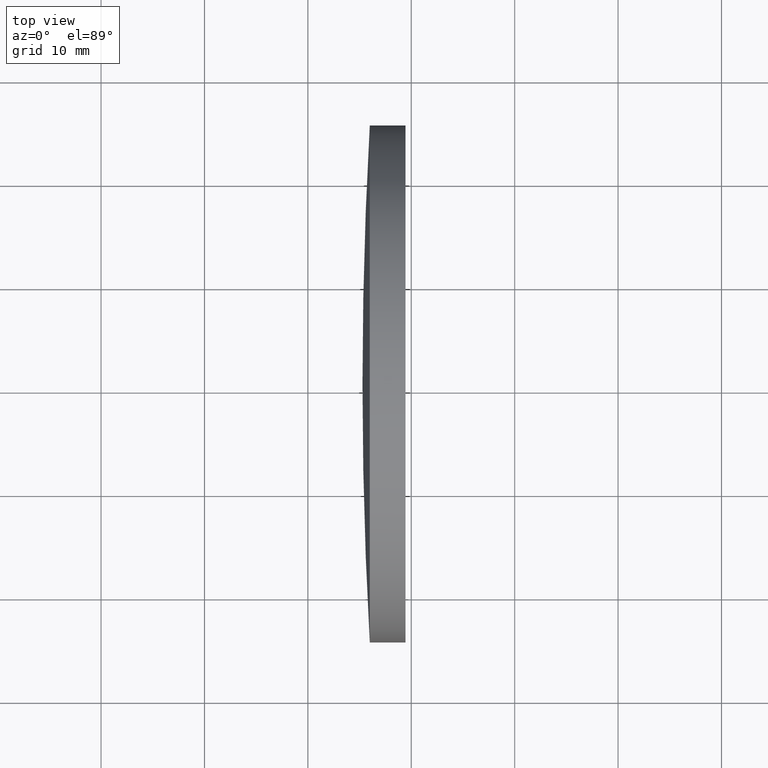
[diagram: clean part render]
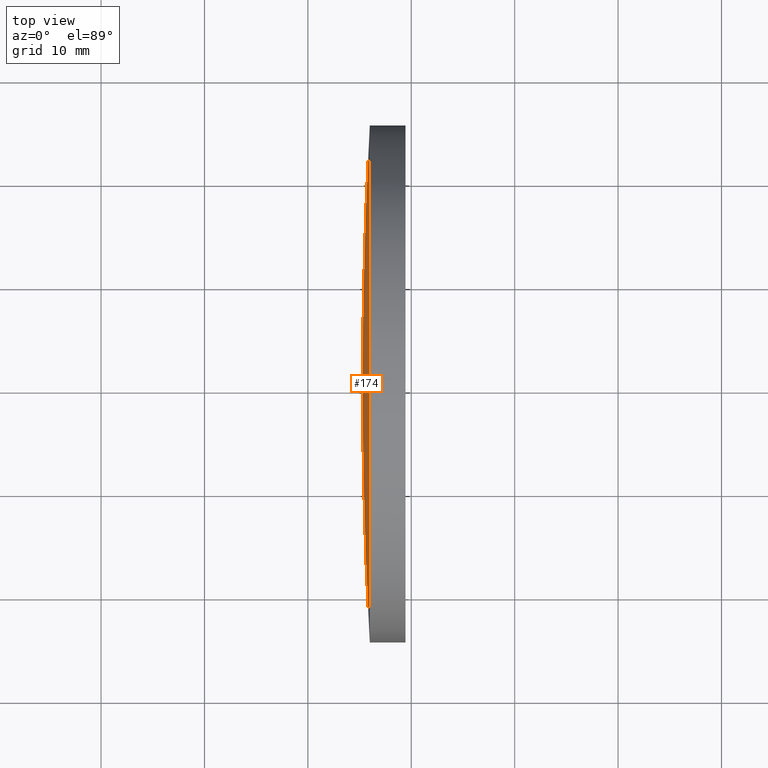
[diagram: same view with one face highlighted and labeled with its STEP entity id]
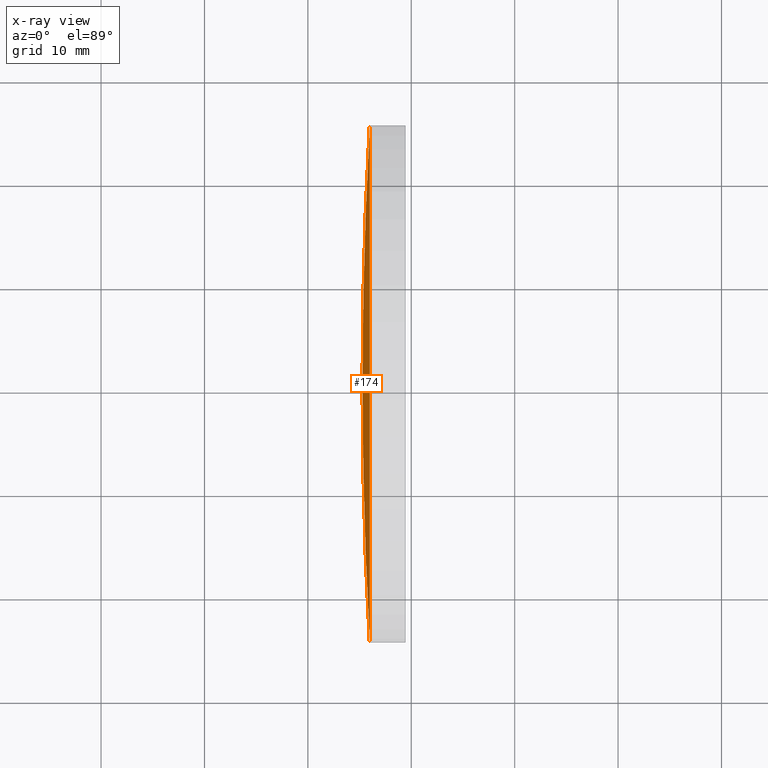
[diagram: x-ray of the same camera — body ghosted, the highlighted face saturated]
A machine part, top view. The second image highlights one B-rep face of the part: STEP entity #174.
The next image is the same camera in x-ray: the body ghosted, the highlighted face saturated — about 0% of this face is hidden behind the body in this view.
In plain terms, the highlighted spherical surface has radius 443.5 mm.
Its self-contained STEP definition (entity closure, byte-faithful):
#5 = AXIS2_PLACEMENT_3D ( 'NONE', #11, #85, #116 ) ;
#11 = CARTESIAN_POINT ( 'NONE',  ( 688.7821311214902400, 130.4336809418806500, 0.0000000000000000000 ) ) ;
#14 = CARTESIAN_POINT ( 'NONE',  ( 688.7821311214902400, 130.4336809418806500, 0.0000000000000000000 ) ) ;
#16 = FACE_OUTER_BOUND ( 'NONE', #111, .T. ) ;
#23 = EDGE_CURVE ( 'NONE', #80, #93, #188, .T. ) ;
#32 = CARTESIAN_POINT ( 'NONE',  ( 688.7821311214902400, 130.4336809418806500, 0.0000000000000000000 ) ) ;
#53 = DIRECTION ( 'NONE',  ( -1.000000000000000000, -6.937607244762875000E-016, -0.0000000000000000000 ) ) ;
#57 = CARTESIAN_POINT ( 'NONE',  ( 245.2821311214903200, 130.4336809418803700, 0.0000000000000000000 ) ) ;
#62 = CIRCLE ( 'NONE', #83, 24.99999999999992500 ) ;
#66 = ORIENTED_EDGE ( 'NONE', *, *, #109, .T. ) ;
#67 = AXIS2_PLACEMENT_3D ( 'NONE', #14, #118, #142 ) ;
#68 = CARTESIAN_POINT ( 'NONE',  ( 245.9873140786527900, 130.4336809418806500, 0.0000000000000000000 ) ) ;
#69 = ORIENTED_EDGE ( 'NONE', *, *, #23, .F. ) ;
#72 = DIRECTION ( 'NONE',  ( -8.496118506040342700E-032, 1.224646799147353200E-016, -1.000000000000000000 ) ) ;
#80 = VERTEX_POINT ( 'NONE', #133 ) ;
#83 = AXIS2_PLACEMENT_3D ( 'NONE', #68, #53, #145 ) ;
#85 = DIRECTION ( 'NONE',  ( -0.0000000000000000000, 0.0000000000000000000, 1.000000000000000000 ) ) ;
#91 = CARTESIAN_POINT ( 'NONE',  ( 245.9873140786527600, 155.4336809418806000, 3.061616997868379500E-015 ) ) ;
#93 = VERTEX_POINT ( 'NONE', #57 ) ;
#96 = SPHERICAL_SURFACE ( 'NONE', #67, 443.4999999999998900 ) ;
#108 = ORIENTED_EDGE ( 'NONE', *, *, #176, .T. ) ;
#109 = EDGE_CURVE ( 'NONE', #183, #93, #184, .T. ) ;
#111 = EDGE_LOOP ( 'NONE', ( #69, #108, #66 ) ) ;
#116 = DIRECTION ( 'NONE',  ( 1.000000000000000000, 0.0000000000000000000, 0.0000000000000000000 ) ) ;
#118 = DIRECTION ( 'NONE',  ( -0.0000000000000000000, 0.0000000000000000000, -1.000000000000000000 ) ) ;
#132 = AXIS2_PLACEMENT_3D ( 'NONE', #32, #72, #181 ) ;
#133 = CARTESIAN_POINT ( 'NONE',  ( 245.9873140786528200, 105.4336809418807200, 0.0000000000000000000 ) ) ;
#142 = DIRECTION ( 'NONE',  ( -7.509964089910868700E-016, 1.000000000000000000, 0.0000000000000000000 ) ) ;
#145 = DIRECTION ( 'NONE',  ( 1.110223024625159900E-015, -1.000000000000000000, 0.0000000000000000000 ) ) ;
#174 = ADVANCED_FACE ( 'NONE', ( #16 ), #96, .T. ) ;
#176 = EDGE_CURVE ( 'NONE', #80, #183, #62, .T. ) ;
#181 = DIRECTION ( 'NONE',  ( 0.0000000000000000000, 1.000000000000000000, 1.224646799147353200E-016 ) ) ;
#183 = VERTEX_POINT ( 'NONE', #91 ) ;
#184 = CIRCLE ( 'NONE', #5, 443.4999999999998900 ) ;
#188 = CIRCLE ( 'NONE', #132, 443.4999999999998900 ) ;